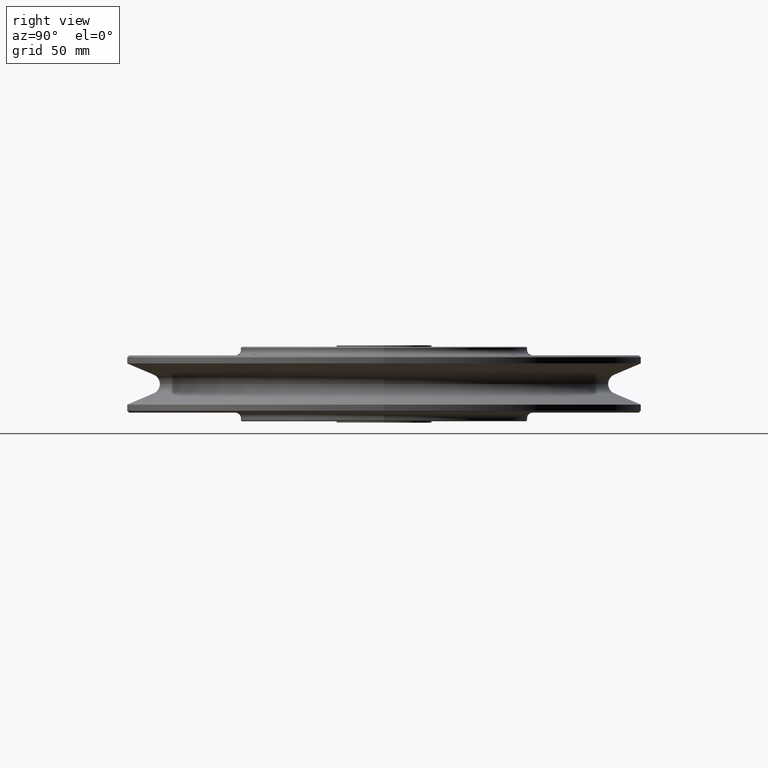
[diagram: clean part render]
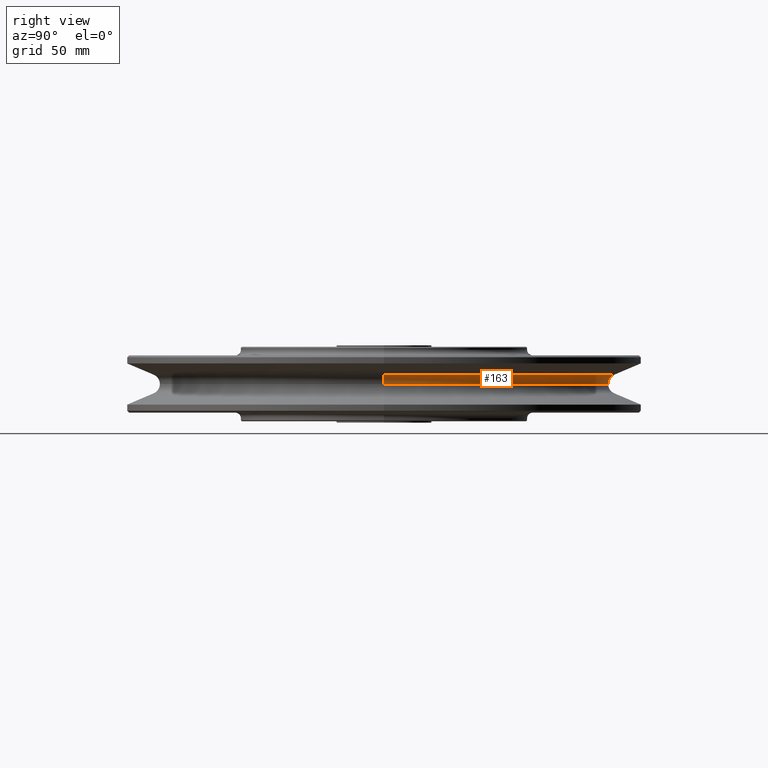
[diagram: same view with one face highlighted and labeled with its STEP entity id]
A machine part, right view. The second image highlights one B-rep face of the part: STEP entity #163.
In plain terms, the highlighted toroidal blend (fillet) surface has major radius 122.8 mm and minor (blend) radius 5.3 mm.
Its self-contained STEP definition (entity closure, byte-faithful):
#163=ADVANCED_FACE('',(#457),#458,.F.);
#457=FACE_OUTER_BOUND('',#907,.T.);
#458=TOROIDAL_SURFACE('',#908,122.8000005962,5.30000059619999);
#907=EDGE_LOOP('',(#1351,#1352,#1353,#1354));
#908=AXIS2_PLACEMENT_3D('',#1355,#1356,#1357);
#1351=ORIENTED_EDGE('',*,*,#2816,.F.);
#1352=ORIENTED_EDGE('',*,*,#2817,.T.);
#1353=ORIENTED_EDGE('',*,*,#2818,.F.);
#1354=ORIENTED_EDGE('',*,*,#2819,.T.);
#1355=CARTESIAN_POINT('',(0.0,0.0,0.0));
#1356=DIRECTION('',(0.0,0.0,1.0));
#1357=DIRECTION('',(1.0,0.0,0.0));
#2816=EDGE_CURVE('',#3411,#3412,#3413,.T.);
#2817=EDGE_CURVE('',#3411,#3414,#3415,.T.);
#2818=EDGE_CURVE('',#3416,#3414,#3417,.T.);
#2819=EDGE_CURVE('',#3416,#3412,#3418,.T.);
#3411=VERTEX_POINT('',#4316);
#3412=VERTEX_POINT('',#4317);
#3413=CIRCLE('',#4318,117.5);
#3414=VERTEX_POINT('',#4319);
#3415=CIRCLE('',#4320,5.30000059619999);
#3416=VERTEX_POINT('',#4321);
#3417=CIRCLE('',#4322,120.771778);
#3418=CIRCLE('',#4323,5.30000059619999);
#4316=CARTESIAN_POINT('',(-117.5,1.39756958643109E-014,6.49062876561538E-016));
#4317=CARTESIAN_POINT('',(117.5,-1.39756958643109E-014,6.49062876561538E-016));
#4318=AXIS2_PLACEMENT_3D('',#10430,#10431,#10432);
#4319=CARTESIAN_POINT('',(-120.771778,1.47902771355035E-014,4.896562));
#4320=AXIS2_PLACEMENT_3D('',#10433,#10434,#10435);
#4321=CARTESIAN_POINT('',(120.771778,0.0,4.896562));
#4322=AXIS2_PLACEMENT_3D('',#10436,#10437,#10438);
#4323=AXIS2_PLACEMENT_3D('',#10439,#10440,#10441);
#10430=CARTESIAN_POINT('',(0.0,0.0,6.49062876561538E-016));
#10431=DIRECTION('',(-0.0,0.0,-1.0));
#10432=DIRECTION('',(-1.0,0.0,0.0));
#10433=CARTESIAN_POINT('',(-122.8000005962,1.50386627665429E-014,0.0));
#10434=DIRECTION('',(-1.22464679914735E-016,-1.0,0.0));
#10435=DIRECTION('',(-1.0,1.22464679914735E-016,-0.0));
#10436=CARTESIAN_POINT('',(0.0,0.0,4.896562));
#10437=DIRECTION('',(0.0,0.0,1.0));
#10438=DIRECTION('',(1.0,0.0,0.0));
#10439=CARTESIAN_POINT('',(122.8000005962,-1.50386627665429E-014,0.0));
#10440=DIRECTION('',(-1.22464679914735E-016,-1.0,0.0));
#10441=DIRECTION('',(1.0,-1.22464679914735E-016,0.0));